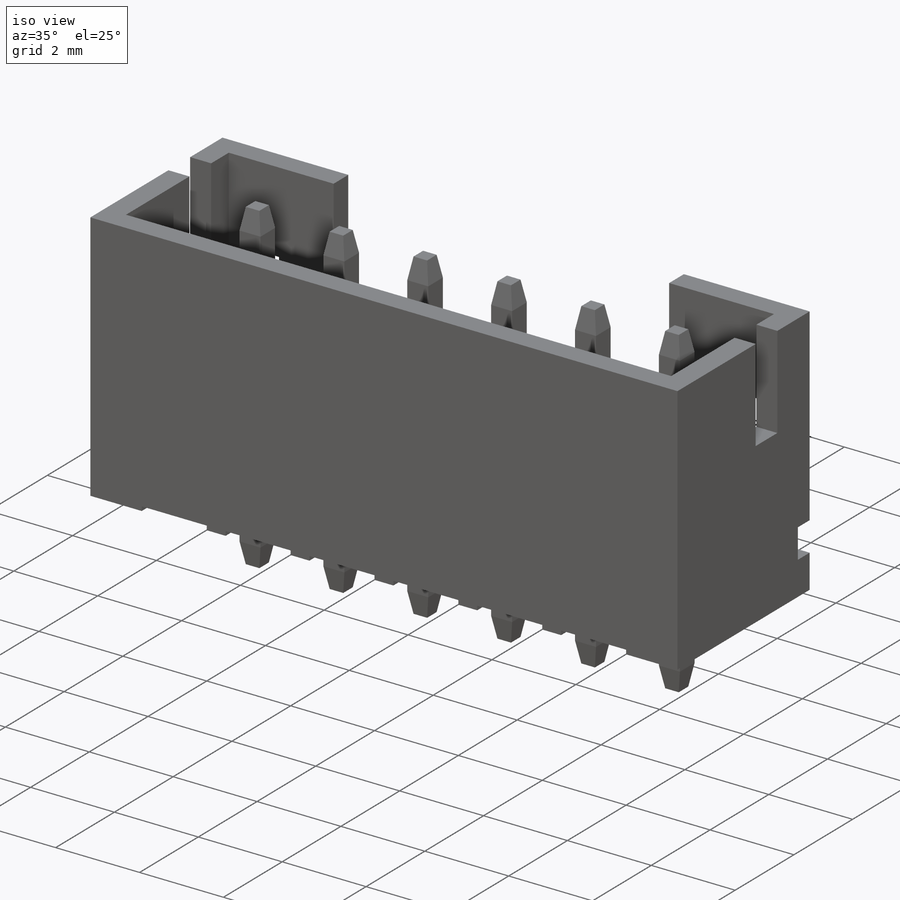
[diagram: iso view]
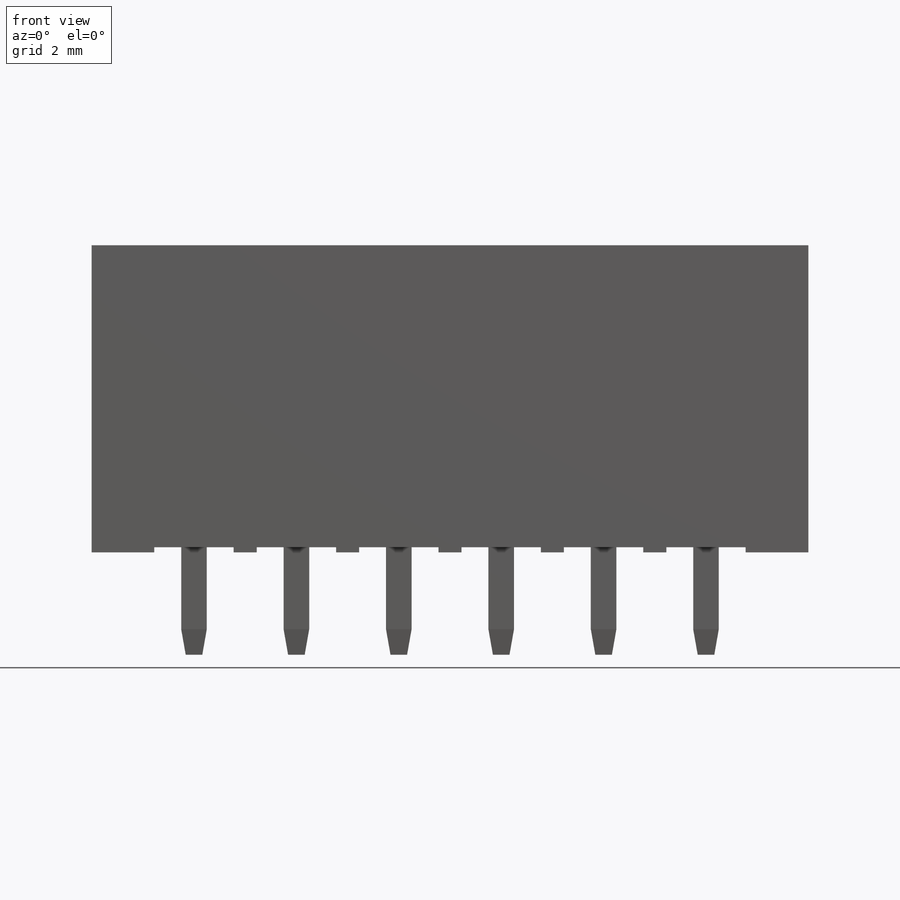
[diagram: front view]
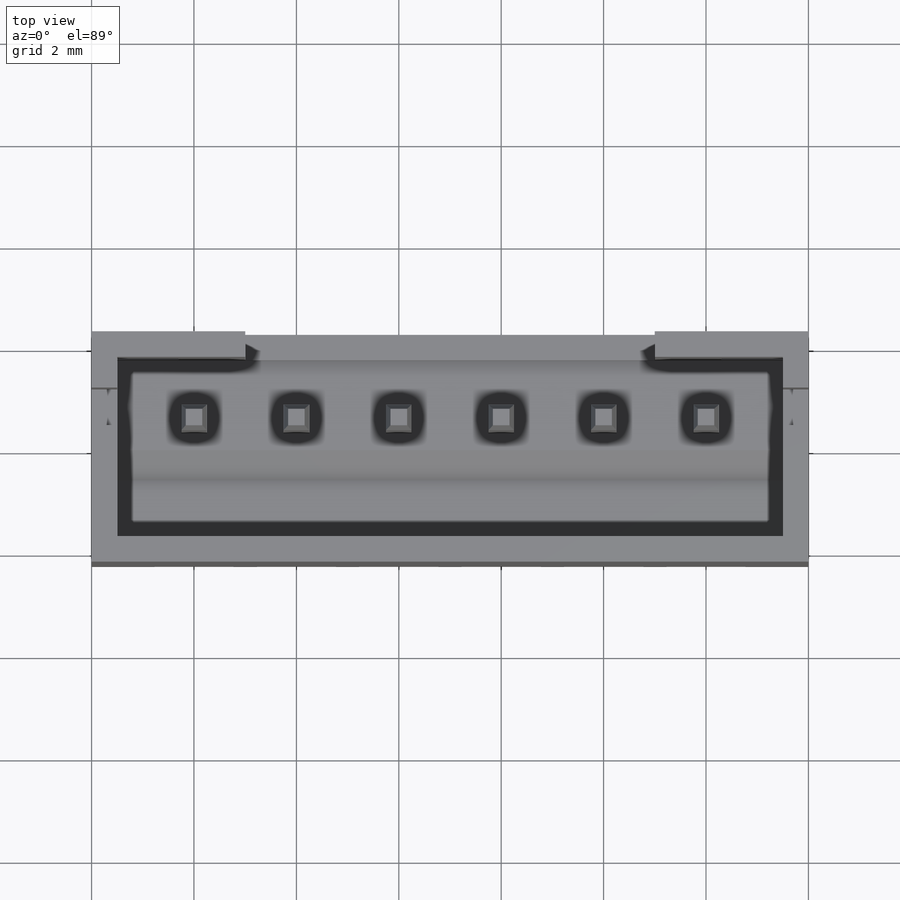
[diagram: top view]
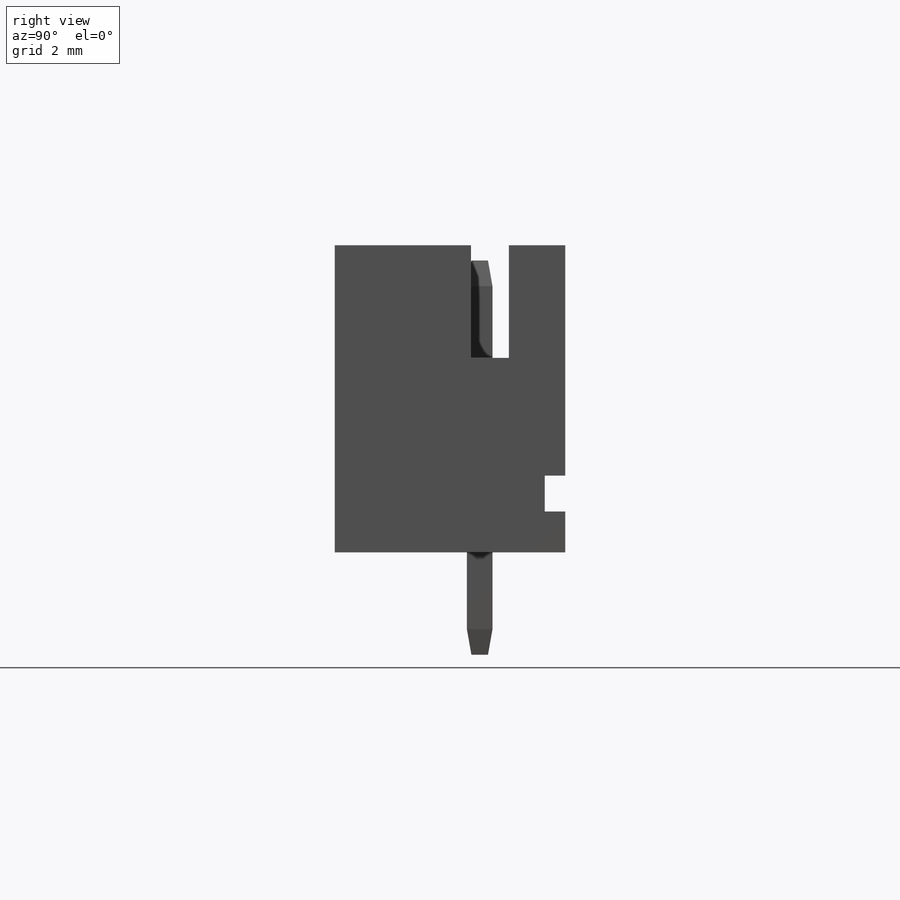
[diagram: right view]
SOLIDWORKS PART (.sldprt)
format: sldprt  version: not decoded by parser v0  size: 439,808 bytes
history: native  units: mm
features: sketch x11, cut_extrude x7, extrude x2, pattern_linear x2, material x1, plane x1, chamfer x1 (+12 scaffold rows collapsed)
feature tree (37):
  scaffold x12  (default folders/planes/origin — collapsed)
  material  "Material <not specified>"
  sketch  "Sketch1"  dims[D1=14.0mm D2=4.5mm D3=2.25mm D4=6.0mm]
  extrude  "Extrude1"  Depth=6mm
  sketch  "Sketch2"  dims[c1.D1=0.65mm c1.D2=1.45mm c1.D3=1.55mm c1.D4=2.54mm c1.D5=1.27mm c2.D1=0.1mm]
  cut_extrude  "Cut-Extrude1"  [1 undecoded]
  sketch  "Sketch3"  dims[D1=0.5mm D2=0.5mm D3=0.5mm D4=0.5mm]
  cut_extrude  "Cut-Extrude2"  Depth=1.8mm
  sketch  "Sketch5"  dims[D1=2.2mm D2=0.74mm D3=1.1mm]
  cut_extrude  "Cut-Extrude3"  [1 undecoded]
  sketch  "Sketch6"  dims[c1.D1=3.5mm c1.D2=1.75mm c1.D3=3.5mm c2.D1=8.0mm c2.D2=3.0mm c2.D3=4.0mm]
  cut_extrude  "Cut-Extrude4"  Depth=1.2mm
  plane  "Plane1"  Offset=8.5mm
  sketch  "Sketch8"
  sketch  "Sketch9"  dims[D1=0.8mm D2=0.7mm D3=4.1mm]
  cut_extrude  "Cut-Extrude5"  [1 undecoded]
  sketch  "Sketch10"  dims[D1=1.2mm D2=1.6mm]
  cut_extrude  "Cut-Extrude6"  [1 undecoded]
  sketch  "Sketch11"  dims[D1=135.0deg]
  cut_extrude  "Cut-Extrude7"  [1 undecoded]
  pattern_linear  "LPattern4"  Count1=3 Count2=4 Spacing1=2mm Spacing2=2mm
  sketch  "Sketch7"  dims[D1=0.5mm D2=0.5mm D3=1.42mm]
  extrude  "Extrude2"  Depth=0.3mm
  pattern_linear  "LPattern2"  Count1=3 Count2=4 Spacing1=2mm Spacing2=2mm
  chamfer  "Chamfer1"  Distance=0.5mm Angle=10deg
  sketch  "Component_Outline"
decode coverage: 16 of 23 modeling features carry decoded parameters
note: 5 parameter values undecoded
summary: no parameter record found for 5 features
note: suppression state not decoded; provenance and decode notes live in map.json
